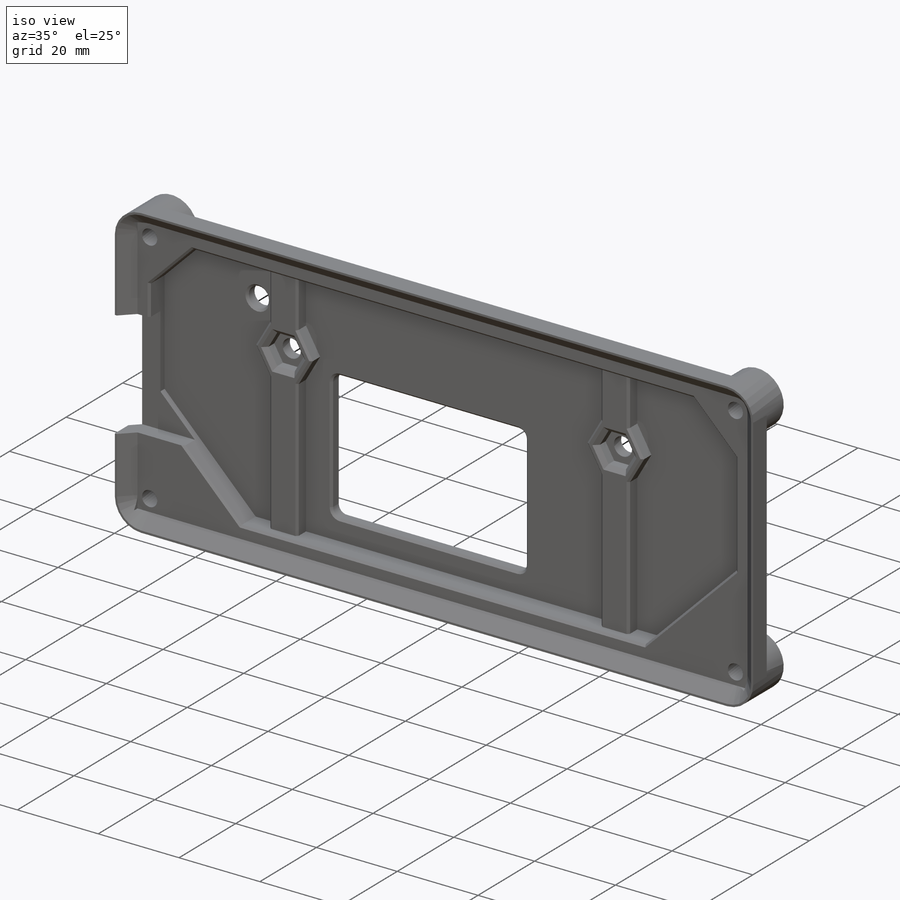
[diagram: iso view]
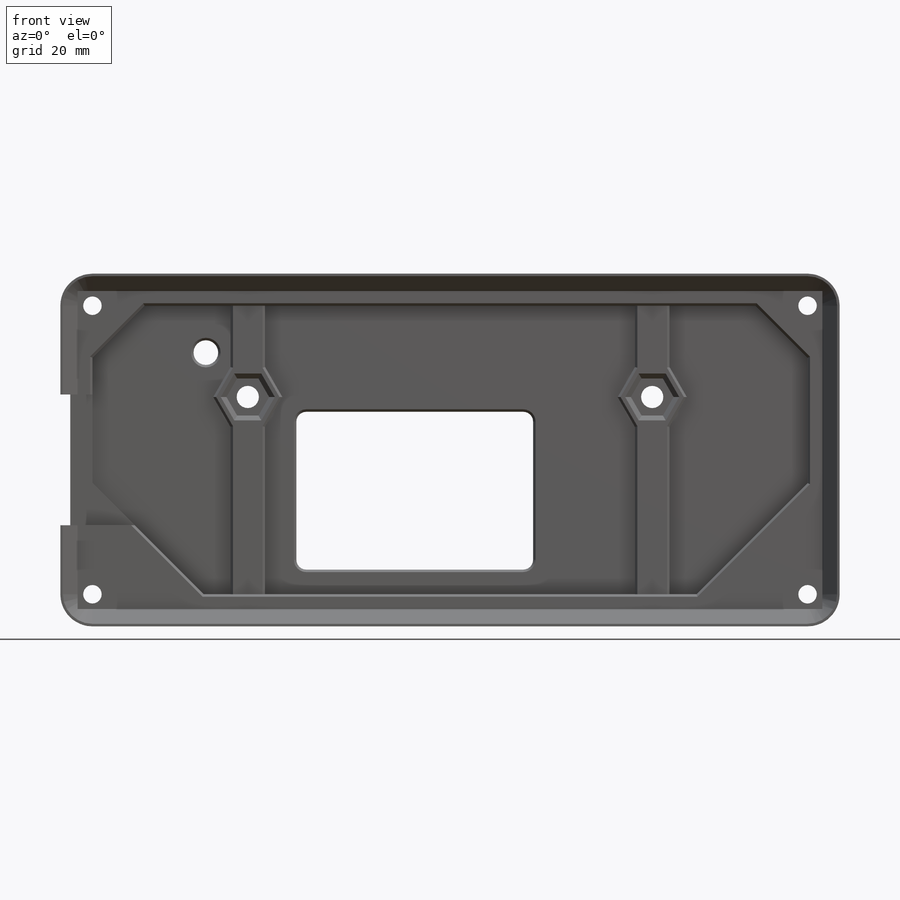
[diagram: front view]
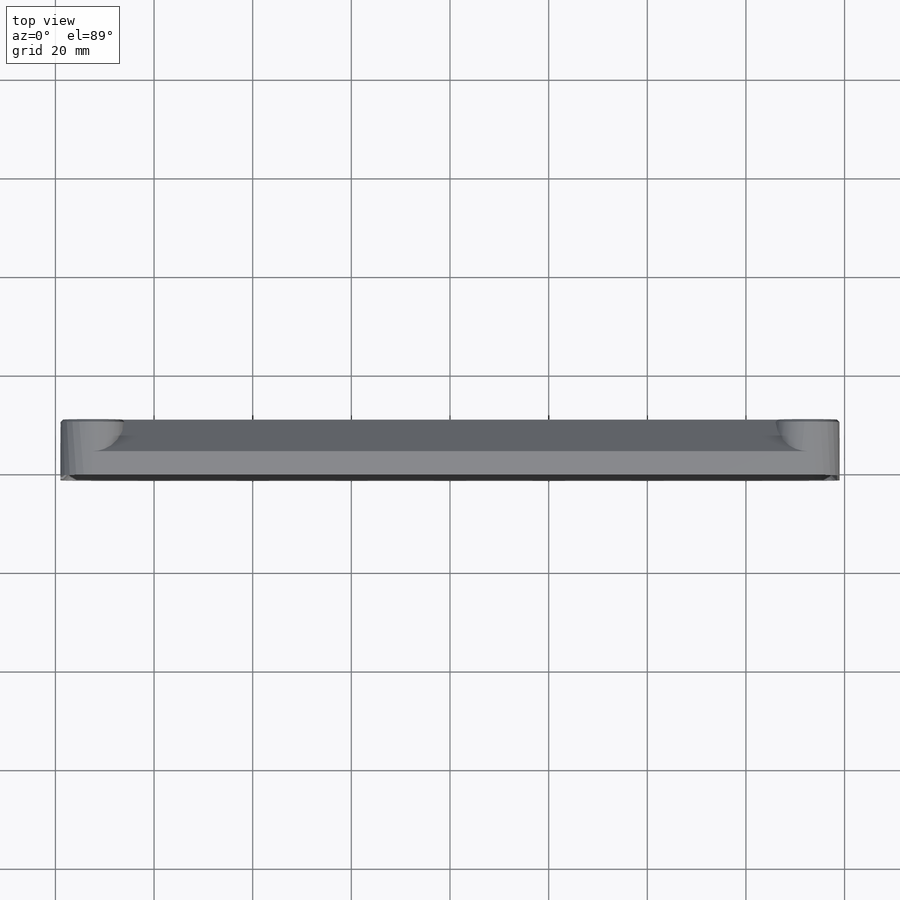
[diagram: top view]
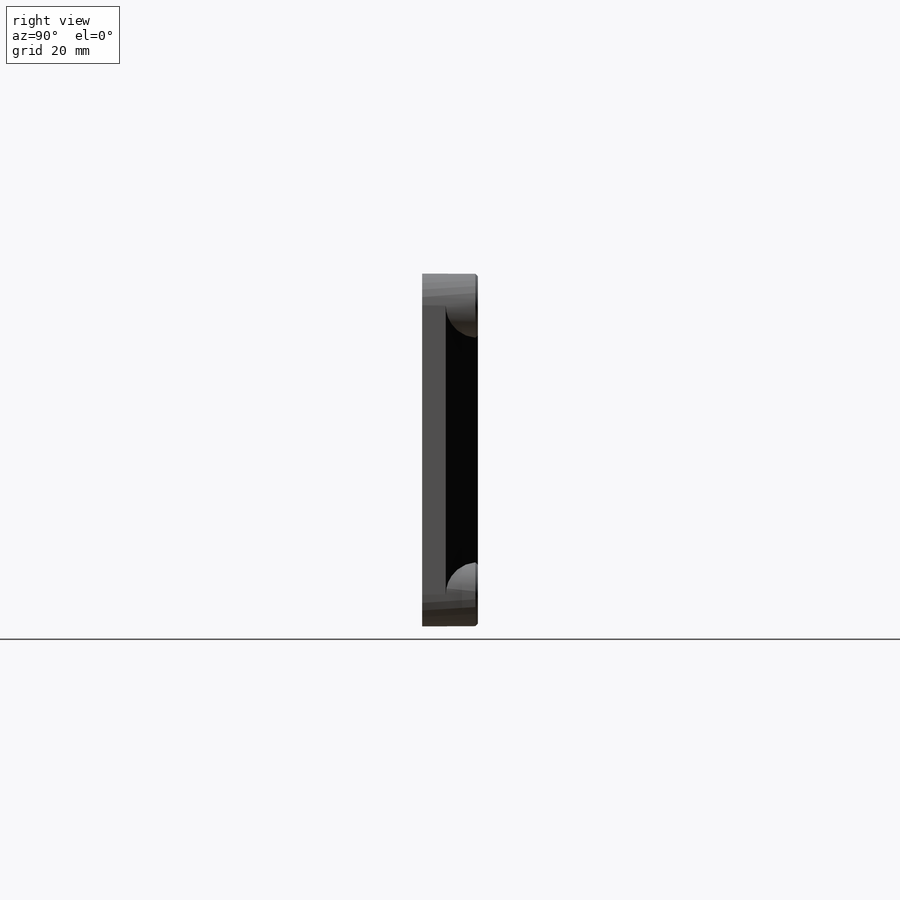
[diagram: right view]
SOLIDWORKS PART (.sldprt)
format: sldprt  version: not decoded by parser v0  size: 887,296 bytes
history: native  units: mm
features: sketch x20, cut_extrude x11, chamfer x8, extrude x6, fillet x3, material x1, plane x1 + 1 further entry (+11 scaffold rows collapsed)
feature tree (62):
  scaffold x11  (default folders/planes/origin — collapsed)
  material  "Material <not specified>"
  sketch  "Sketch1"  dims[c1.D1=~60.07597mm c1.D2=~155.600494mm c2.D1=~10.821138mm c2.D2=~103.733663mm c3.D1=4.0mm c3.D2=6.0mm c3.D3=~10.512208mm c4.D2=5.25mm c4.D3=5.25mm c4.D4=4.75mm c4.D1=4.0mm]
  extrude  "Boss-Extrude1"  Depth=3mm
  sketch  "Sketch2"  dims[c1.D1=55.0mm c2.D1=45.0deg c3.D1=10.0mm c3.D2=12.0mm c3.D3=24.0mm c4.D1=0.0mm]
  extrude  "Boss-Extrude2"  [1 undecoded]
  sketch  "Sketch3"  dims[D1=3.5mm]
  extrude  "Boss-Extrude3"  Depth=3mm
  sketch  "Sketch9"  dims[c1.D1=0.0mm c1.D2=2.5mm c2.D1=0.0mm c2.D2=2.5mm]
  extrude  "Boss-Extrude5"  [1 undecoded]
  sketch  "Sketch4"  dims[D1=3.75mm]
  cut_extrude  "Cut-Extrude1"  [1 undecoded]
  sketch  "Sketch5"  dims[D1=5.0mm]
  cut_extrude  "Cut-Extrude2"  [1 undecoded]
  sketch  "Sketch7"  dims[D1=~0.066782mm]
  cut_extrude  "Cut-Extrude3"  Depth=2.5mm
  sketch  "Sketch8"  dims[c1.D1=~6.656294mm c1.D2=~43.650222mm c2.D1=10.0mm c2.D2=55.0mm c2.D3=36.0mm c2.D4=4.0mm c2.D5=53.0mm c3.D1=48.0mm c3.D2=32.0mm c3.D3=47.85mm c3.D4=18.5mm c3.D5=28.0mm]
  cut_extrude  "Cut-Extrude4"  [1 undecoded]
  fillet  "Fillet5"  Radius=3mm
  chamfer  "Chamfer3"  Distance=3mm Angle=45deg
  chamfer  "Chamfer1"  Distance=1.5mm Angle=30deg
  chamfer  "Chamfer7"  Distance=0.5mm Angle=45deg
  fillet  "Fillet3"  Radius=6.5mm
  sketch  "Sketch12"  dims[c1.D1=~76.06577mm c1.D2=~148.970366mm c2.D1=~24.35913mm c2.D2=~100.367302mm c3.D1=~92.645937mm c3.D2=~169.47922mm]
  cut_extrude  "Cut-Extrude5"  [1 undecoded]
  sketch  "Sketch13"  dims[D1=2.8mm]
  cut_extrude  "Cut-Extrude11"  Depth=5mm
  fillet  "Fillet6"  Radius=2mm
  sketch  "Sketch14"  dims[D1=~23.14672mm]
  chamfer  "Chamfer8"  Distance=6.5mm Angle=45deg
  sketch  "Sketch15"
  extrude  "Boss-Extrude7"  Depth=1mm
  sketch  "Sketch16"
  cut_extrude  "Cut-Extrude6"  [1 undecoded]
  chamfer  "Chamfer9"  Distance=0.5mm Angle=45deg
  sketch  "Sketch21"  dims[D1=25.0mm D2=82.0mm]
  sketch  "Sketch22"  dims[D1=7.0mm D2=7.0mm D3=1.0mm]
  extrude  "Boss-Extrude9"  Depth=2.25mm
  sketch  "Sketch18"  dims[c1.D1=~7.103198mm c1.D3=4.5mm c2.D1=82.0mm c2.D2=25.0mm]
  cut_extrude  "Cut-Extrude7"  [1 undecoded]
  sketch  "Sketch19"  dims[D1=7.5mm]
  cut_extrude  "Cut-Extrude8"  Depth=3mm
  chamfer  "Chamfer11"  Distance=1mm Angle=45deg
  chamfer  "Chamfer12"  Distance=0.5mm Angle=45deg
  chamfer  "Chamfer13"  Distance=0.5mm Angle=45deg
  sketch  "Sketch24"  dims[c1.D1=~23.203035mm c1.D2=~7.970304mm c2.D1=18.0mm c2.D2=5.5mm c2.D3=1.5mm c3.D2=44.5mm]
  cut_extrude  "Cut-Extrude10"  Depth=20mm
  plane  "Plane1"
  sketch  "Sketch25"  dims[c1.D1=~1.372595mm c2.D1=30.0deg]
  cut_extrude  "Cut-Extrude13"  [1 undecoded]
  sketch  "Sketch26"
  "Sketch-Pattern1"
decode coverage: 36 of 48 modeling features carry decoded parameters; 1 rows unclassified (native names shown)
note: ~ marks probable driven/reference dimensions
note: 9 parameter values undecoded
summary: no parameter record found for 9 features
note: suppression state not decoded; provenance and decode notes live in map.json
